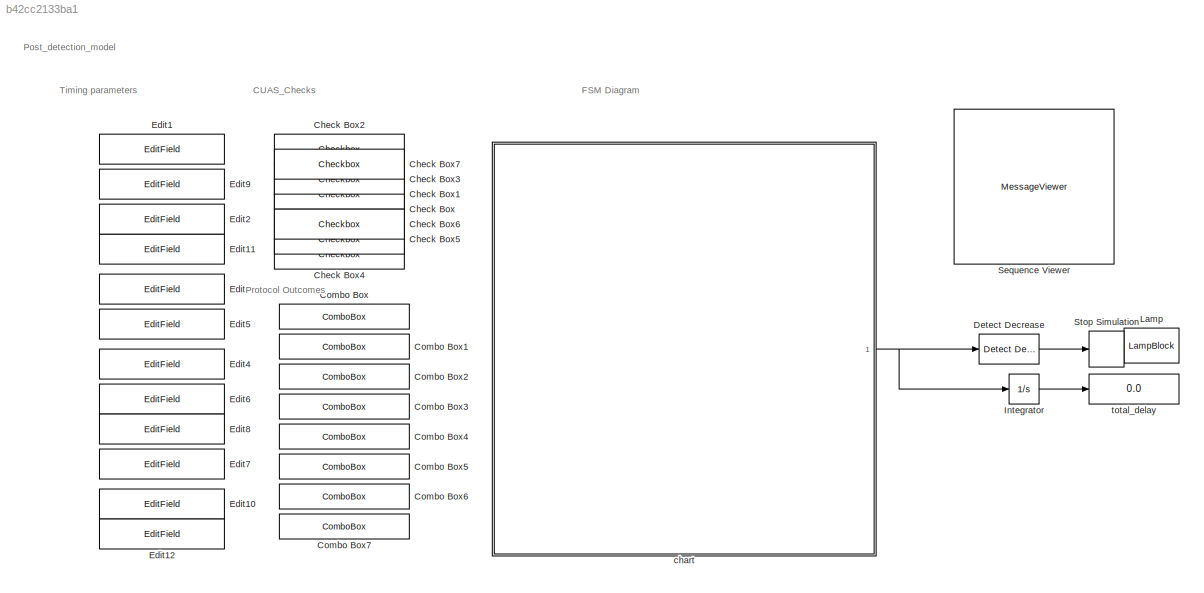
MODEL slx_b42cc2133ba1
KIND model
CONFIG AbsTol = auto
CONFIG EnableMultiTasking = off
CONFIG FixedStep = auto
CONFIG MaxStep = auto
CONFIG MinStep = auto
CONFIG RelTol = 1e-3
CONFIG SampleTimeConstraint = Unconstrained
CONFIG Solver = VariableStepAuto
CONFIG SolverName = VariableStepAuto
CONFIG StartTime = 0.0
CONFIG StopTime = 50
WORKSPACE source: mxarray member
WORKSPACE auth = 1
BLOCK [Checkbox] Check Box
  Label = Check_AUTH_DB
  LabelPosition = Hide
  ShowInitialText = on
BLOCK [Checkbox] Check Box1
  Label = Check_ID_DB
  LabelPosition = Hide
  ShowInitialText = on
BLOCK [Checkbox] Check Box2
  Label = Check_ID
  LabelPosition = Hide
  ShowInitialText = on
BLOCK [Checkbox] Check Box3
  Label = ID_validity_check
  LabelPosition = Hide
  ShowInitialText = on
BLOCK [Checkbox] Check Box4
  Label = In_detection_range
  LabelPosition = Hide
  ShowInitialText = on
BLOCK [Checkbox] Check Box5
  Label = Check_AUTH_Time
  LabelPosition = Hide
  ShowInitialText = on
BLOCK [Checkbox] Check Box6
  Label = Check_AUTH_Area
  LabelPosition = Hide
  ShowInitialText = on
BLOCK [Checkbox] Check Box7
  Label = Verify_ID
  LabelPosition = Hide
  ShowInitialText = on
BLOCK [ComboBox] Combo Box
  LabelPosition = Hide
  SelectedLabel = P1_1
BLOCK [ComboBox] Combo Box1
  LabelPosition = Hide
  SelectedLabel = P2_1
BLOCK [ComboBox] Combo Box2
  LabelPosition = Hide
  SelectedLabel = P3_1
BLOCK [ComboBox] Combo Box3
  LabelPosition = Hide
  SelectedLabel = P4_1
BLOCK [ComboBox] Combo Box4
  LabelPosition = Hide
  SelectedLabel = P5_1
BLOCK [ComboBox] Combo Box5
  LabelPosition = Hide
  SelectedLabel = P6_1
BLOCK [ComboBox] Combo Box6
  LabelPosition = Hide
  SelectedLabel = P7_1
BLOCK [ComboBox] Combo Box7
  LabelPosition = Hide
  SelectedLabel = P8_1
BLOCK [Reference] Detect Decrease  REF=simulink/Logic and Bit
Operations/Detect
Decrease
  Ports = [1, 1]
  SourceBlock = simulink/Logic and Bit\nOperations/Detect\nDecrease
  SourceProductBaseCode = SL
  SourceProductName = Simulink
  SourceType = Detect Decrease
BLOCK [EditField] Edit1
  Alignment = Center
  ShowInitialText = on
BLOCK [EditField] Edit10
  Alignment = Center
  ShowInitialText = on
BLOCK [EditField] Edit11
  Alignment = Center
  ShowInitialText = on
BLOCK [EditField] Edit12
  Alignment = Center
  ShowInitialText = on
BLOCK [EditField] Edit2
  Alignment = Center
  ShowInitialText = on
BLOCK [EditField] Edit3
  Alignment = Center
  ShowInitialText = on
BLOCK [EditField] Edit4
  Alignment = Center
  ShowInitialText = on
BLOCK [EditField] Edit5
  Alignment = Center
  ShowInitialText = on
BLOCK [EditField] Edit6
  Alignment = Center
  ShowInitialText = on
BLOCK [EditField] Edit7
  Alignment = Center
  ShowInitialText = on
BLOCK [EditField] Edit8
  Alignment = Center
  ShowInitialText = on
BLOCK [EditField] Edit9
  Alignment = Center
  ShowInitialText = on
BLOCK [Integrator] Integrator
  Ports = [1, 1]
BLOCK [LampBlock] Lamp
  LabelPosition = Hide
BLOCK [MessageViewer] Sequence Viewer
BLOCK [Stop] Stop Simulation
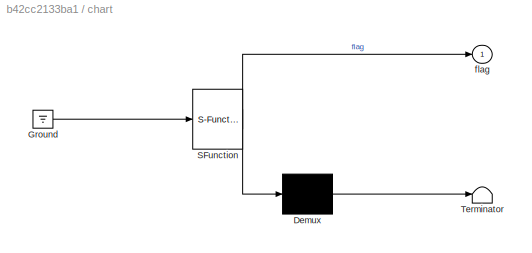
BLOCK [SubSystem] chart
  BlockKeywords = __PRM__SERIALIZED__DATA__:Stateflow Chart,Stateflow Diagram
  ErrorFcn = Stateflow.Translate.translate
  PermitHierarchicalResolution = ExplicitOnly
  Ports = [0, 1]
  RequestExecContextInheritance = off
  SFBlockType = Chart
  TreatAsAtomicUnit = on
BLOCK [Demux] chart/ Demux 
  Outputs = 1
  Ports = [1, 1]
BLOCK [Ground] chart/ Ground 
BLOCK [S-Function] chart/ SFunction 
  EnableBusSupport = on
  FunctionName = sf_sfun
  Parameters = Auth_DB_Check,ID_DB_check,ID_check,ID_validity_check,In_detection_range,P1,P2,P3,P4,P5,P6,P7,P8,T_AUTH_CUAS,T_AUTH_DB,T_AUTH_USS,T_Area,T_ID_DB,T_ID_Read,T_ID_valid,T_resp_delay,T_time,T_timeout,T_timeout_inerdict,T_verifyID,Time_check,Zone_check,verify_ID
  PortCounts = [1 2]
  Ports = [1, 2]
  SFcnIsStateOwnerBlock = off
  SFunctionDeploymentMode = off
  Tag = Stateflow S-Function 3
BLOCK [Terminator] chart/ Terminator 
BLOCK [Outport] chart/flag
  IconDisplay = Port number
BLOCK [Display] total_delay
  Decimation = 1
  Ports = [1]
ANNOTATION (root): CUAS_Checks
ANNOTATION (root): FSM Diagram
ANNOTATION (root): Post_detection_model
ANNOTATION (root): Protocol Outcomes
ANNOTATION (root): Timing parameters
LINE Detect Decrease:1 -> Stop Simulation:1
LINE Integrator:1 -> total_delay:1
NET chart:1 -> Detect Decrease:1, Integrator:1
note: NET lines group one-source signal fan-out (src -> all destinations, sorted); 1:1 wires keep LINE
CHART chart states=27 transitions=57
  STATE_LABEL 'Tolerate_ID_failure\nTolerate_ID=1'
  STATE_LABEL 'Tolerate_AUTH_Failure\nTolerate_Auth=1'
  STATE_LABEL 'mission_within_time\nflag=0;'
  STATE_LABEL 'Authorized_mission'
  STATE_LABEL 'drone_detected\nflag=1;'
  STATE_LABEL 'ID_received'
  STATE_LABEL 'Authentic_ID'
  STATE_LABEL 'mission_within_zone'
  STATE_LABEL 'mission_out_of_range\n'
  STATE_LABEL 'Valid_ID'
  STATE_LABEL 'Known_ID'
  STATE_LABEL 'Survaillance\nflag=0\n'
  STATE_LABEL 'No_ID_received'
  STATE_LABEL 'No_ID_received1_potential_Opr\nP1\nT_P1_C1= T_AUTH_CUAS +2* T_resp_delay + 2*T_AUTH_USS + T_timeout ;\nT_P1_C2= T_AUTH_CUAS +3* T_resp_delay + T_AUTH_USS ;\nT_P1_C3_4= T_AUTH_CUAS +2* T_AUTH_USS + T_AUTH_CUAS +3* T_resp_delay ;\nT_P1_C5=3* T_AUTH_CUAS +2* T_AUTH_USS + T_AUTH_CUAS + T_AUTH_CUAS +5* T_resp_delay ;\n'
  STATE_LABEL 'Area_violation\nP7\nT_P7_C1= T_AUTH_CUAS + T_resp_delay +2* T_AUTH_USS + T_timeout + T_timeout_inerdict ;\nT_P7_C2_3= T_AUTH_CUAS +3* T_resp_delay +3* T_AUTH_USS + T_timeout_inerdict ;\nT_P7_C4=2* T_AUTH_USS +3* T_resp_delay +2* T_AUTH_CUAS ;\n'
  STATE_LABEL 'Time_violation\nP8\nT_P8_C1= T_AUTH_CUAS + T_resp_delay +2* T_AUTH_USS + T_timeout + T_timeout_inerdict ;\nT_P8_C2_3= T_AUTH_CUAS +3* T_resp_delay +3* T_AUTH_USS + T_timeout_inerdict ;\nT_P8_C3=2* T_AUTH_USS +3* T_resp_delay +2* T_AUTH_CUAS ;\n'
  STATE_LABEL 'No_ID_received_No_potential_operator\nflag=1;'
  STATE_LABEL 'Fake_ID'
  STATE_LABEL 'ID_not_in_IDDB'
  STATE_LABEL 'ID_in_AUTHDB\nP3\nT_P3_C1= T_AUTH_CUAS + T_resp_delay ;\nT_P3_C2= T_AUTH_CUAS + T_resp_delay + T_AUTH_USS  + T_timeout_inerdict ;\n'
  STATE_LABEL 'Expired_ID_authorized\nP5'
  STATE_LABEL 'Expired_ID'
  STATE_LABEL 'UnAuthorized\nP6\nT_P6_C1=2* T_AUTH_CUAS + T_resp_delay ;\nT_P6_C2= T_AUTH_CUAS + T_resp_delay + T_AUTH_USS  + T_timeout_inerdict ;\nT_P6_C3= T_resp_delay +2* T_AUTH_CUAS ;\n'
  STATE_LABEL 'Unknown_ID\nP2\nT_P2_C1= T_AUTH_CUAS + T_resp_delay ;\nT_P2_C2= T_AUTH_CUAS + T_resp_delay + T_AUTH_USS  + T_timeout_inerdict ;\nT_P2_C3= T_AUTH_CUAS + T_resp_delay + T_AUTH_USS ;'
  STATE_LABEL 'Expired_ID_and_unauthorized\nP4'
  STATE_LABEL 'Immediate_Interdiction\nflag=0;'
  STATE_LABEL 'Delayed_interdiction \nflag=0;'
